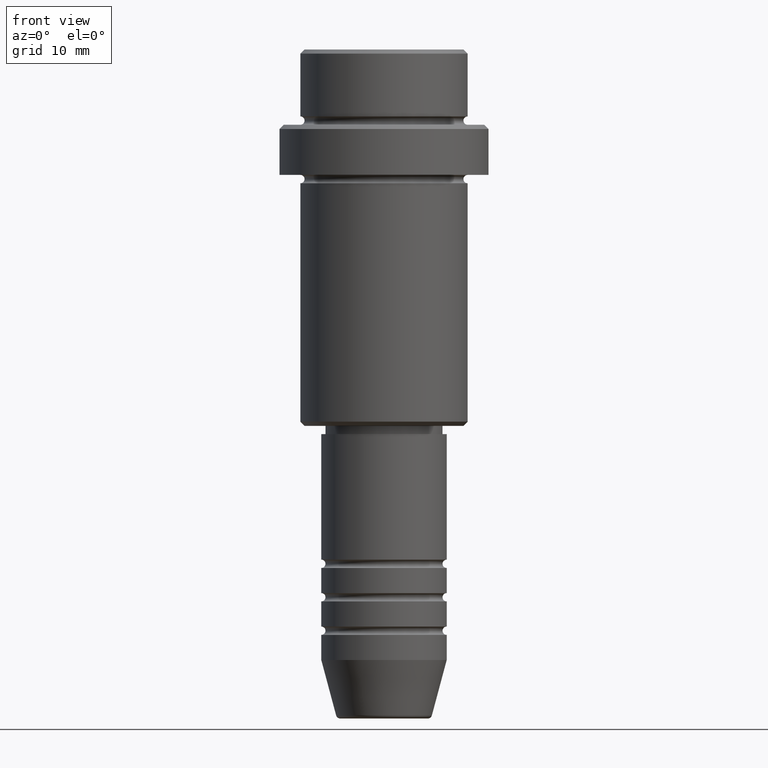
[diagram: clean part render]
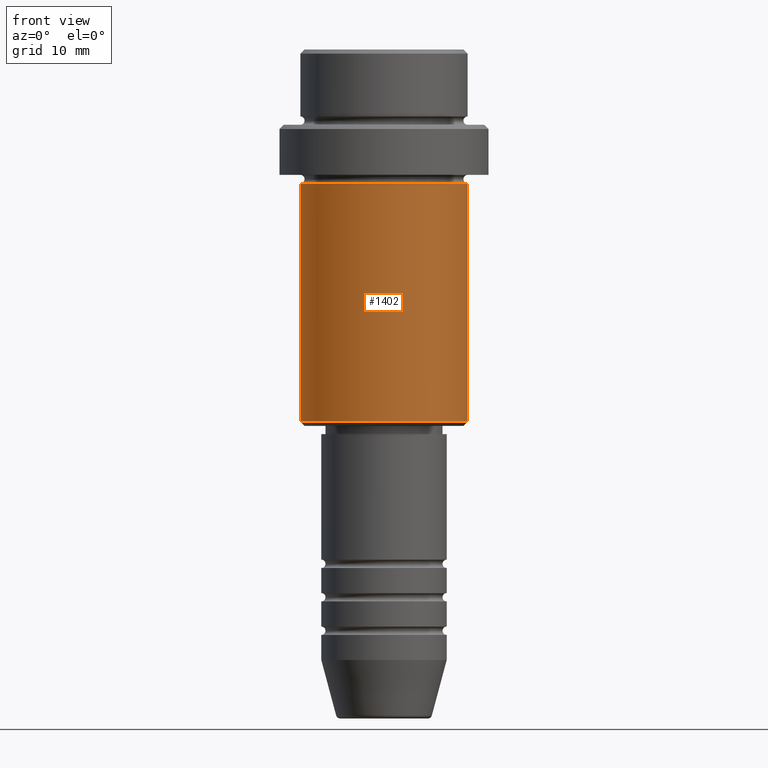
[diagram: same view with one face highlighted and labeled with its STEP entity id]
A machine part, front view. The second image highlights one B-rep face of the part: STEP entity #1402.
In plain terms, the highlighted cylindrical surface (partial cylindrical patch) has radius 10 mm, axis along (-0, -0, 1).
Its self-contained STEP definition (entity closure, byte-faithful):
#8 = VERTEX_POINT ( 'NONE', #896 ) ;
#73 = EDGE_CURVE ( 'NONE', #907, #132, #1379, .T. ) ;
#90 = CIRCLE ( 'NONE', #391, 9.999999999999998224 ) ;
#132 = VERTEX_POINT ( 'NONE', #1028 ) ;
#143 = EDGE_CURVE ( 'NONE', #1090, #132, #453, .T. ) ;
#285 = DIRECTION ( 'NONE',  ( -0.000000000000000000, -0.000000000000000000, 1.000000000000000000 ) ) ;
#320 = ORIENTED_EDGE ( 'NONE', *, *, #1416, .F. ) ;
#326 = DIRECTION ( 'NONE',  ( 1.000000000000000000, 0.000000000000000000, 0.000000000000000000 ) ) ;
#333 = ORIENTED_EDGE ( 'NONE', *, *, #445, .T. ) ;
#391 = AXIS2_PLACEMENT_3D ( 'NONE', #1063, #1380, #735 ) ;
#392 = ORIENTED_EDGE ( 'NONE', *, *, #143, .F. ) ;
#409 = FACE_OUTER_BOUND ( 'NONE', #460, .T. ) ;
#445 = EDGE_CURVE ( 'NONE', #8, #907, #90, .T. ) ;
#453 = CIRCLE ( 'NONE', #1009, 9.999999999999998224 ) ;
#460 = EDGE_LOOP ( 'NONE', ( #320, #333, #553, #392 ) ) ;
#553 = ORIENTED_EDGE ( 'NONE', *, *, #73, .T. ) ;
#617 = VECTOR ( 'NONE', #285, 1000.000000000000000 ) ;
#646 = LINE ( 'NONE', #989, #1173 ) ;
#673 = CARTESIAN_POINT ( 'NONE',  ( -9.999999999999998224, 1.224646799147353059E-15, -16.00000000000000000 ) ) ;
#723 = CARTESIAN_POINT ( 'NONE',  ( 9.999999999999998224, 0.000000000000000000, 0.000000000000000000 ) ) ;
#735 = DIRECTION ( 'NONE',  ( -1.000000000000000000, 0.000000000000000000, 0.000000000000000000 ) ) ;
#767 = DIRECTION ( 'NONE',  ( -0.000000000000000000, -0.000000000000000000, 1.000000000000000000 ) ) ;
#881 = AXIS2_PLACEMENT_3D ( 'NONE', #1088, #1306, #326 ) ;
#896 = CARTESIAN_POINT ( 'NONE',  ( -9.999999999999998224, 1.224646799147353059E-15, -44.50000000000001421 ) ) ;
#907 = VERTEX_POINT ( 'NONE', #1060 ) ;
#938 = DIRECTION ( 'NONE',  ( -0.000000000000000000, -0.000000000000000000, 1.000000000000000000 ) ) ;
#989 = CARTESIAN_POINT ( 'NONE',  ( -9.999999999999998224, 1.224646799147353059E-15, 0.000000000000000000 ) ) ;
#1009 = AXIS2_PLACEMENT_3D ( 'NONE', #1141, #938, #1265 ) ;
#1028 = CARTESIAN_POINT ( 'NONE',  ( 9.999999999999998224, 0.000000000000000000, -16.00000000000000000 ) ) ;
#1060 = CARTESIAN_POINT ( 'NONE',  ( 9.999999999999998224, 0.000000000000000000, -44.50000000000001421 ) ) ;
#1063 = CARTESIAN_POINT ( 'NONE',  ( 0.000000000000000000, 0.000000000000000000, -44.50000000000001421 ) ) ;
#1088 = CARTESIAN_POINT ( 'NONE',  ( 0.000000000000000000, 0.000000000000000000, 0.000000000000000000 ) ) ;
#1090 = VERTEX_POINT ( 'NONE', #673 ) ;
#1141 = CARTESIAN_POINT ( 'NONE',  ( 0.000000000000000000, 0.000000000000000000, -16.00000000000000000 ) ) ;
#1173 = VECTOR ( 'NONE', #767, 1000.000000000000000 ) ;
#1265 = DIRECTION ( 'NONE',  ( 1.000000000000000000, 0.000000000000000000, 0.000000000000000000 ) ) ;
#1295 = CYLINDRICAL_SURFACE ( 'NONE', #881, 9.999999999999998224 ) ;
#1306 = DIRECTION ( 'NONE',  ( -0.000000000000000000, -0.000000000000000000, 1.000000000000000000 ) ) ;
#1379 = LINE ( 'NONE', #723, #617 ) ;
#1380 = DIRECTION ( 'NONE',  ( -0.000000000000000000, -0.000000000000000000, 1.000000000000000000 ) ) ;
#1402 = ADVANCED_FACE ( 'NONE', ( #409 ), #1295, .T. ) ;
#1416 = EDGE_CURVE ( 'NONE', #8, #1090, #646, .T. ) ;